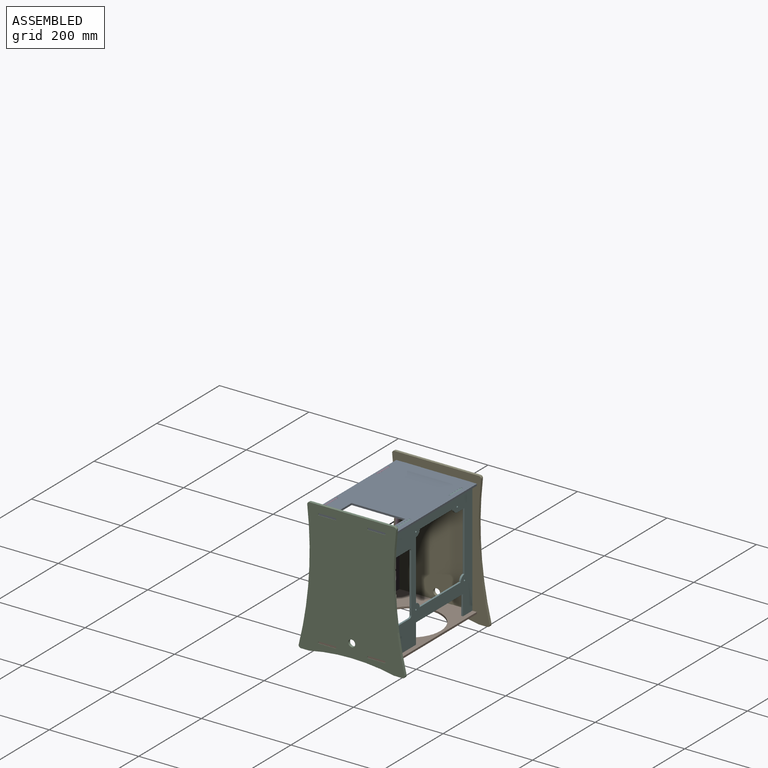
[diagram: assembled view]
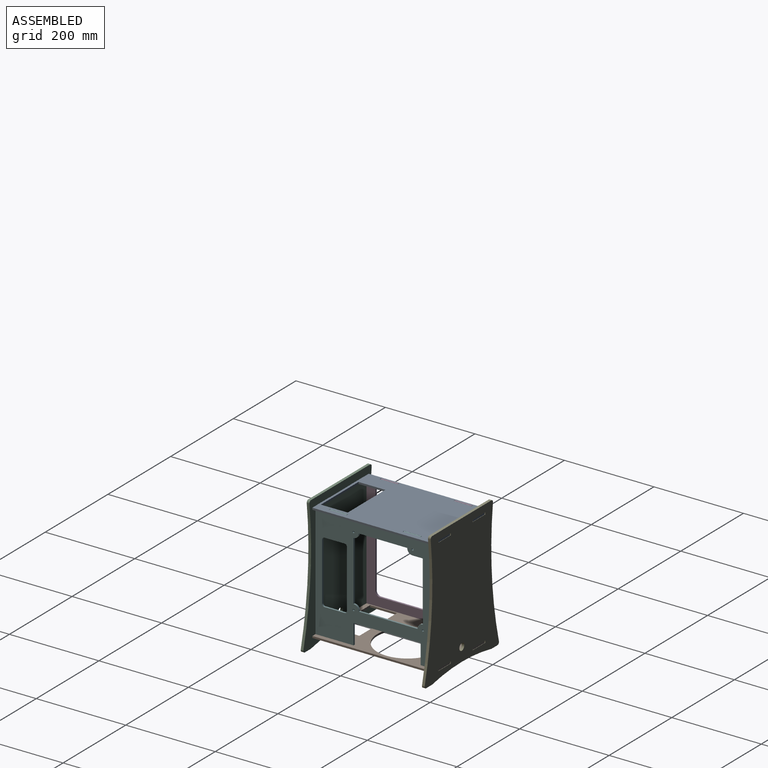
[diagram: assembled view, second angle]
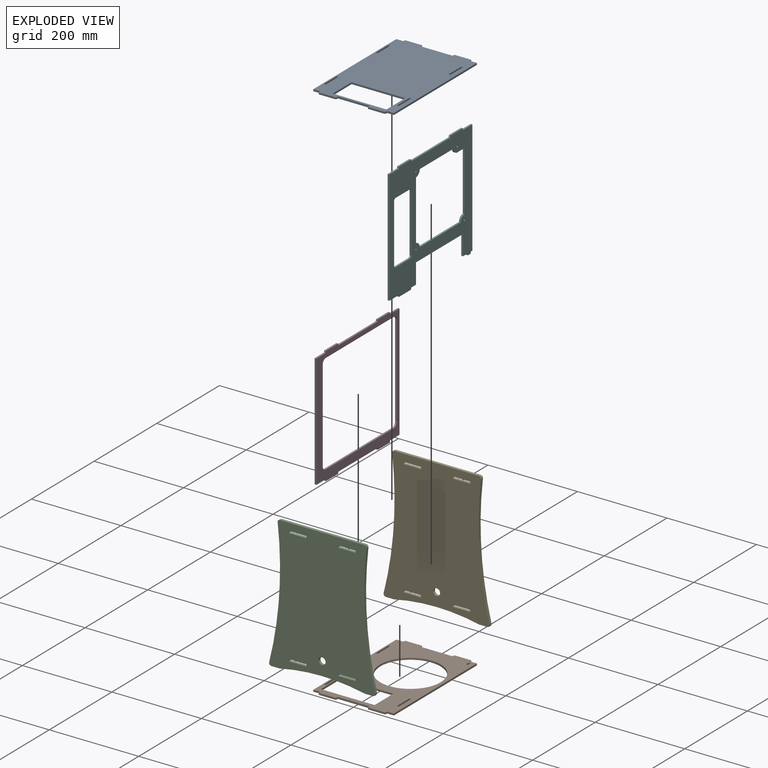
[diagram: exploded view]
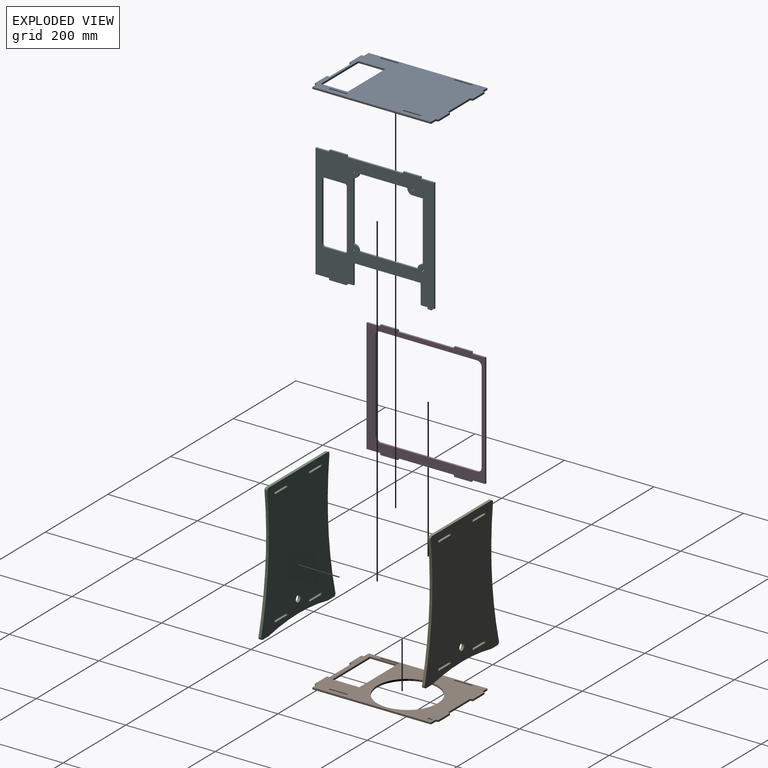
[diagram: exploded view, second angle]
ASSEMBLY  parts=6 mates=5
PART A: 42 faces, bbox 180x275.8x4 mm
  f0: plane 15x4mm, normal (0,-1,0), area 60mm2, adj f6,f8,f9,f23
  f1: plane 15x4mm, normal (0,1,0), area 60mm2, adj f6,f8,f9,f22
  f2: plane 70x4mm, normal (0,1,0), area 280mm2, adj f8,f9,f18,f21
  f3: plane 70x4mm, normal (0,-1,0), area 280mm2, adj f8,f9,f16,f24
  f4: plane 265x4mm, normal (-1,0,0), area 1060mm2, adj f5,f7,f8,f9
  f5: plane 15x4mm, normal (0,-1,0), area 60mm2, adj f4,f8,f9,f14
  f6: plane 265x4mm, normal (1,0,0), area 1060mm2, adj f0,f1,f8,f9
  f7: plane 15x4mm, normal (0,1,0), area 60mm2, adj f4,f8,f9,f17
  f8: plane 275.82x180mm, normal (0,0,1), area 40664.9mm2, adj f0,f1,f2,f3,f4,f5,f6,f7
  f9: plane 275.82x180mm, normal (0,0,-1), area 40664.9mm2, adj f0,f1,f2,f3,f4,f5,f6,f7
  f10: plane 60x4mm, normal (1,0,0), area 240mm2, adj f8,f9,f11,f12
  f11: plane 120x4mm, normal (0,-1,0), area 480mm2, adj f8,f9,f10,f13
  f12: plane 120x4mm, normal (0,1,0), area 480mm2, adj f8,f9,f10,f13
  f13: plane 60x4mm, normal (-1,0,0), area 240mm2, adj f8,f9,f11,f12
  f14: plane 5.5x4mm, normal (-0.98,-0.17,0), area 22.3mm2, adj f5,f8,f9,f15
  f15: plane 38.06x4mm, normal (0,-1,0), area 152.2mm2, adj f8,f9,f14,f16
  f16: plane 5.5x4mm, normal (0.98,-0.17,0), area 22.3mm2, adj f3,f8,f9,f15
  f17: plane 5.32x4mm, normal (-0.95,0.3,0), area 22.3mm2, adj f7,f8,f9,f19
  f18: plane 5.32x4mm, normal (0.95,0.3,0), area 22.3mm2, adj f2,f8,f9,f19
  f19: plane 36.6x4mm, normal (0,1,0), area 146.4mm2, adj f8,f9,f17,f18
  f20: plane 36.6x4mm, normal (0,1,0), area 146.4mm2, adj f8,f9,f21,f22
  f21: plane 5.32x4mm, normal (-0.95,0.3,0), area 22.3mm2, adj f2,f8,f9,f20
  f22: plane 5.32x4mm, normal (0.95,0.3,0), area 22.3mm2, adj f1,f8,f9,f20
  f23: plane 5.5x4mm, normal (0.98,-0.17,0), area 22.3mm2, adj f0,f8,f9,f25
  f24: plane 5.5x4mm, normal (-0.98,-0.17,0), area 22.3mm2, adj f3,f8,f9,f25
  f25: plane 38.06x4mm, normal (0,-1,0), area 152.2mm2, adj f8,f9,f23,f24
  f26: plane 4.2x4mm, normal (0,1,0), area 16.8mm2, adj f8,f9,f27,f28
  f27: plane 40x4mm, normal (1,0,0), area 160mm2, adj f8,f9,f26,f29
  f28: plane 40x4mm, normal (-1,0,0), area 160mm2, adj f8,f9,f26,f29
  f29: plane 4.2x4mm, normal (0,-1,0), area 16.8mm2, adj f8,f9,f27,f28
  f30: plane 4.2x4mm, normal (0,1,0), area 16.8mm2, adj f8,f9,f31,f32
  f31: plane 40x4mm, normal (1,0,0), area 160mm2, adj f8,f9,f30,f33
  f32: plane 40x4mm, normal (-1,0,0), area 160mm2, adj f8,f9,f30,f33
  f33: plane 4.2x4mm, normal (0,-1,0), area 16.8mm2, adj f8,f9,f31,f32
  f34: plane 4.2x4mm, normal (0,1,0), area 16.8mm2, adj f8,f9,f35,f36
  f35: plane 40x4mm, normal (1,0,0), area 160mm2, adj f8,f9,f34,f37
  f36: plane 40x4mm, normal (-1,0,0), area 160mm2, adj f8,f9,f34,f37
  f37: plane 4.2x4mm, normal (0,-1,0), area 16.8mm2, adj f8,f9,f35,f36
  f38: plane 4.2x4mm, normal (0,-1,0), area 16.8mm2, adj f8,f9,f39,f40
  f39: plane 40x4mm, normal (-1,0,0), area 160mm2, adj f8,f9,f38,f41
  f40: plane 40x4mm, normal (1,0,0), area 160mm2, adj f8,f9,f38,f41
  f41: plane 4.2x4mm, normal (0,1,0), area 16.8mm2, adj f8,f9,f39,f40
PART B: 43 faces, bbox 180x275.8x4 mm
  f0: plane 15x4mm, normal (0,-1,0), area 60mm2, adj f6,f8,f9,f24
  f1: plane 15x4mm, normal (0,1,0), area 60mm2, adj f6,f8,f9,f23
  f2: plane 70x4mm, normal (0,1,0), area 280mm2, adj f8,f9,f19,f22
  f3: plane 70x4mm, normal (0,-1,0), area 280mm2, adj f8,f9,f17,f25
  f4: plane 265x4mm, normal (-1,0,0), area 1060mm2, adj f5,f7,f8,f9
  f5: plane 15x4mm, normal (0,-1,0), area 60mm2, adj f4,f8,f9,f15
  f6: plane 265x4mm, normal (1,0,0), area 1060mm2, adj f0,f1,f8,f9
  f7: plane 15x4mm, normal (0,1,0), area 60mm2, adj f4,f8,f9,f18
  f8: plane 275.82x180mm, normal (0,0,1), area 26477mm2, adj f0,f1,f2,f3,f4,f5,f6,f7
  f9: plane 275.82x180mm, normal (0,0,-1), area 26477mm2, adj f0,f1,f2,f3,f4,f5,f6,f7
  f10: plane 60x4mm, normal (1,0,0), area 240mm2, adj f8,f9,f11,f12
  f11: plane 120x4mm, normal (0,-1,0), area 480mm2, adj f8,f9,f10,f13
  f12: plane 120x4mm, normal (0,1,0), area 480mm2, adj f8,f9,f10,f13
  f13: plane 60x4mm, normal (-1,0,0), area 240mm2, adj f8,f9,f11,f12
  f14: cylinder r=67.5mm len=135mm, axis (0,0,1), area 1696.5mm2, adj f8,f9
  f15: plane 5.5x4mm, normal (-0.98,-0.17,0), area 22.3mm2, adj f5,f8,f9,f16
  f16: plane 38.06x4mm, normal (0,-1,0), area 152.2mm2, adj f8,f9,f15,f17
  f17: plane 5.5x4mm, normal (0.98,-0.17,0), area 22.3mm2, adj f3,f8,f9,f16
  f18: plane 5.32x4mm, normal (-0.95,0.3,0), area 22.3mm2, adj f7,f8,f9,f20
  f19: plane 5.32x4mm, normal (0.95,0.3,0), area 22.3mm2, adj f2,f8,f9,f20
  f20: plane 36.6x4mm, normal (0,1,0), area 146.4mm2, adj f8,f9,f18,f19
  f21: plane 36.6x4mm, normal (0,1,0), area 146.4mm2, adj f8,f9,f22,f23
  f22: plane 5.32x4mm, normal (-0.95,0.3,0), area 22.3mm2, adj f2,f8,f9,f21
  f23: plane 5.32x4mm, normal (0.95,0.3,0), area 22.3mm2, adj f1,f8,f9,f21
  f24: plane 5.5x4mm, normal (0.98,-0.17,0), area 22.3mm2, adj f0,f8,f9,f26
  f25: plane 5.5x4mm, normal (-0.98,-0.17,0), area 22.3mm2, adj f3,f8,f9,f26
  f26: plane 38.06x4mm, normal (0,-1,0), area 152.2mm2, adj f8,f9,f24,f25
  f27: plane 4.2x4mm, normal (0,1,0), area 16.8mm2, adj f8,f9,f28,f29
  f28: plane 40x4mm, normal (1,0,0), area 160mm2, adj f8,f9,f27,f30
  f29: plane 40x4mm, normal (-1,0,0), area 160mm2, adj f8,f9,f27,f30
  f30: plane 4.2x4mm, normal (0,-1,0), area 16.8mm2, adj f8,f9,f28,f29
  f31: plane 4.2x4mm, normal (0,1,0), area 16.8mm2, adj f8,f9,f32,f33
  f32: plane 40x4mm, normal (1,0,0), area 160mm2, adj f8,f9,f31,f34
  f33: plane 40x4mm, normal (-1,0,0), area 160mm2, adj f8,f9,f31,f34
  f34: plane 4.2x4mm, normal (0,-1,0), area 16.8mm2, adj f8,f9,f32,f33
  f35: plane 4.2x4mm, normal (0,1,0), area 16.8mm2, adj f8,f9,f36,f37
  f36: plane 40x4mm, normal (1,0,0), area 160mm2, adj f8,f9,f35,f38
  f37: plane 40x4mm, normal (-1,0,0), area 160mm2, adj f8,f9,f35,f38
  f38: plane 4.2x4mm, normal (0,-1,0), area 16.8mm2, adj f8,f9,f36,f37
  f39: plane 4.2x4mm, normal (0,-1,0), area 16.8mm2, adj f8,f9,f40,f41
  f40: plane 10x4mm, normal (-1,0,0), area 40mm2, adj f8,f9,f39,f42
  f41: plane 10x4mm, normal (1,0,0), area 40mm2, adj f8,f9,f39,f42
  f42: plane 4.2x4mm, normal (0,1,0), area 16.8mm2, adj f8,f9,f40,f41
PART C: 29 faces, bbox 237.1x6x300 mm
  f0: cylinder r=800mm len=288.2mm, axis (0,1,0), area 1742.5mm2, adj f7,f8,f9,f12
  f1: plane 18.55x6mm, normal (0,0,-1), area 111.3mm2, adj f2,f7,f8,f9
  f2: cylinder r=456.25mm len=190mm, axis (0,1,0), area 1148.4mm2, adj f1,f3,f7,f8
  f3: plane 18.55x6mm, normal (0,0,-1), area 111.3mm2, adj f2,f7,f8,f10
  f4: cylinder r=800mm len=288.2mm, axis (0,1,0), area 1742.5mm2, adj f7,f8,f10,f11
  f5: plane 188.73x6mm, normal (0,0,1), area 1132.4mm2, adj f7,f8,f11,f12
  f6: cylinder r=7.75mm len=15.5mm, axis (0,1,0), area 292.2mm2, adj f7,f8
  f7: plane 300x237.1mm, normal (0,-1,0), area 58113.2mm2, adj f0,f1,f2,f3,f4,f5,f6,f9
  f8: plane 300x237.1mm, normal (0,1,0), area 58113.2mm2, adj f0,f1,f2,f3,f4,f5,f6,f9
  f9: cylinder r=5mm len=6.23mm, axis (0,1,0), area 54.6mm2, adj f0,f1,f7,f8
  f10: cylinder r=5mm len=6.23mm, axis (0,1,0), area 54.6mm2, adj f3,f4,f7,f8
  f11: cylinder r=5mm len=6mm, axis (0,1,0), area 50.6mm2, adj f4,f5,f7,f8
  f12: cylinder r=5mm len=6mm, axis (0,1,0), area 50.6mm2, adj f0,f5,f7,f8
  f13: plane 6x4.2mm, normal (1,0,0), area 25.2mm2, adj f7,f8,f14,f15
  f14: plane 40x6mm, normal (0,0,-1), area 240mm2, adj f7,f8,f13,f16
  f15: plane 40x6mm, normal (0,0,1), area 240mm2, adj f7,f8,f13,f16
  f16: plane 6x4.2mm, normal (-1,0,0), area 25.2mm2, adj f7,f8,f14,f15
  f17: plane 40x6mm, normal (0,0,-1), area 240mm2, adj f7,f8,f18,f19
  f18: plane 6x4.2mm, normal (-1,0,0), area 25.2mm2, adj f7,f8,f17,f20
  f19: plane 6x4.2mm, normal (1,0,0), area 25.2mm2, adj f7,f8,f17,f20
  f20: plane 40x6mm, normal (0,0,1), area 240mm2, adj f7,f8,f18,f19
  f21: plane 6x4.2mm, normal (1,0,0), area 25.2mm2, adj f7,f8,f22,f23
  f22: plane 40x6mm, normal (0,0,-1), area 240mm2, adj f7,f8,f21,f24
  f23: plane 40x6mm, normal (0,0,1), area 240mm2, adj f7,f8,f21,f24
  f24: plane 6x4.2mm, normal (-1,0,0), area 25.2mm2, adj f7,f8,f22,f23
  f25: plane 6x4.2mm, normal (1,0,0), area 25.2mm2, adj f7,f8,f26,f27
  f26: plane 40x6mm, normal (0,0,-1), area 240mm2, adj f7,f8,f25,f28
  f27: plane 40x6mm, normal (0,0,1), area 240mm2, adj f7,f8,f25,f28
  f28: plane 6x4.2mm, normal (-1,0,0), area 25.2mm2, adj f7,f8,f26,f27
PART D: 30 faces, bbox 4x265x263 mm
  f0: plane 265x263mm, normal (1,0,0), area 14964.6mm2, adj f2,f3,f4,f5,f6,f7,f8,f9
  f1: plane 265x263mm, normal (-1,0,0), area 14964.6mm2, adj f2,f3,f4,f5,f6,f7,f8,f9
  f2: plane 125x4mm, normal (0,0,-1), area 500mm2, adj f0,f1,f18,f20
  f3: plane 30x4mm, normal (0,0,-1), area 120mm2, adj f0,f1,f9,f16
  f4: plane 125x4mm, normal (0,0,1), area 500mm2, adj f0,f1,f10,f13
  f5: plane 30x4mm, normal (0,0,1), area 120mm2, adj f0,f1,f9,f12
  f6: plane 30x4mm, normal (0,0,-1), area 120mm2, adj f0,f1,f7,f19
  f7: plane 255x4mm, normal (0,1,0), area 1020mm2, adj f0,f1,f6,f8
  f8: plane 30x4mm, normal (0,0,1), area 120mm2, adj f0,f1,f7,f14
  f9: plane 255x4mm, normal (0,-1,0), area 1020mm2, adj f0,f1,f3,f5
  f10: plane 4x4mm, normal (0,0.98,0.17), area 16.2mm2, adj f0,f1,f4,f11
  f11: plane 38.59x4mm, normal (0,0,1), area 154.4mm2, adj f0,f1,f10,f12
  f12: plane 4x4mm, normal (0,-0.98,0.17), area 16.2mm2, adj f0,f1,f5,f11
  f13: plane 4x4mm, normal (0,-0.98,0.17), area 16.2mm2, adj f0,f1,f4,f15
  f14: plane 4x4mm, normal (0,0.98,0.17), area 16.2mm2, adj f0,f1,f8,f15
  f15: plane 38.59x4mm, normal (0,0,1), area 154.4mm2, adj f0,f1,f13,f14
  f16: plane 4x4mm, normal (0,-0.98,-0.17), area 16.2mm2, adj f0,f1,f3,f17
  f17: plane 38.59x4mm, normal (0,0,-1), area 154.4mm2, adj f0,f1,f16,f18
  f18: plane 4x4mm, normal (0,0.98,-0.17), area 16.2mm2, adj f0,f1,f2,f17
  f19: plane 4x4mm, normal (0,0.98,-0.17), area 16.2mm2, adj f0,f1,f6,f21
  f20: plane 4x4mm, normal (0,-0.98,-0.17), area 16.2mm2, adj f0,f1,f2,f21
  f21: plane 38.59x4mm, normal (0,0,-1), area 154.4mm2, adj f0,f1,f19,f20
  f22: plane 205x4mm, normal (0,-1,0), area 820mm2, adj f0,f1,f23,f29
  f23: cylinder r=10mm len=10mm, axis (1,0,0), area 62.8mm2, adj f0,f1,f22,f24
  f24: plane 217x4mm, normal (0,0,-1), area 868mm2, adj f0,f1,f23,f25
  f25: cylinder r=10mm len=10mm, axis (1,0,0), area 62.8mm2, adj f0,f1,f24,f26
  f26: plane 205x4mm, normal (0,1,0), area 820mm2, adj f0,f1,f25,f27
  f27: cylinder r=10mm len=10mm, axis (1,0,0), area 62.8mm2, adj f0,f1,f26,f28
  f28: plane 217x4mm, normal (0,0,1), area 868mm2, adj f0,f1,f27,f29
  f29: cylinder r=10mm len=10mm, axis (1,0,0), area 62.8mm2, adj f0,f1,f22,f28
PART E: same geometry as C
PART F: 47 faces, bbox 4x265x263 mm
  f0: plane 265x263mm, normal (1,0,0), area 29926.5mm2, adj f2,f3,f4,f5,f6,f7,f8,f9
  f1: plane 265x263mm, normal (-1,0,0), area 29926.5mm2, adj f2,f3,f4,f5,f6,f7,f8,f9
  f2: plane 15x4mm, normal (0,0,-1), area 60mm2, adj f0,f1,f21,f29
  f3: plane 15x4mm, normal (0,0,-1), area 60mm2, adj f0,f1,f19,f27
  f4: plane 30x4mm, normal (0,0,-1), area 120mm2, adj f0,f1,f10,f17
  f5: plane 125x4mm, normal (0,0,1), area 500mm2, adj f0,f1,f11,f14
  f6: plane 30x4mm, normal (0,0,1), area 120mm2, adj f0,f1,f10,f13
  f7: plane 5x4mm, normal (0,0,-1), area 20mm2, adj f0,f1,f8,f20
  f8: plane 255x4mm, normal (0,1,0), area 1020mm2, adj f0,f1,f7,f9
  f9: plane 30x4mm, normal (0,0,1), area 120mm2, adj f0,f1,f8,f15
  f10: plane 255x4mm, normal (0,-1,0), area 1020mm2, adj f0,f1,f4,f6
  f11: plane 4x4mm, normal (0,0.98,0.17), area 16.2mm2, adj f0,f1,f5,f12
  f12: plane 38.59x4mm, normal (0,0,1), area 154.4mm2, adj f0,f1,f11,f13
  f13: plane 4x4mm, normal (0,-0.98,0.17), area 16.2mm2, adj f0,f1,f6,f12
  f14: plane 4x4mm, normal (0,-0.98,0.17), area 16.2mm2, adj f0,f1,f5,f16
  f15: plane 4x4mm, normal (0,0.98,0.17), area 16.2mm2, adj f0,f1,f9,f16
  f16: plane 38.59x4mm, normal (0,0,1), area 154.4mm2, adj f0,f1,f14,f15
  f17: plane 4x4mm, normal (0,-0.98,-0.17), area 16.2mm2, adj f0,f1,f4,f18
  f18: plane 38.59x4mm, normal (0,0,-1), area 154.4mm2, adj f0,f1,f17,f19
  f19: plane 4x4mm, normal (0,0.98,-0.17), area 16.2mm2, adj f0,f1,f3,f18
  f20: plane 4x4mm, normal (0,0.98,-0.17), area 16.2mm2, adj f0,f1,f7,f22
  f21: plane 4x4mm, normal (0,-0.98,-0.17), area 16.2mm2, adj f0,f1,f2,f22
  f22: plane 8.59x4mm, normal (0,0,-1), area 34.4mm2, adj f0,f1,f20,f21
  f23: cylinder r=2.1mm len=4.2mm, axis (-1,0,0), area 52.8mm2, adj f0,f1
  f24: cylinder r=2.1mm len=4.2mm, axis (-1,0,0), area 52.8mm2, adj f0,f1
  f25: cylinder r=2.1mm len=4.2mm, axis (-1,0,0), area 52.8mm2, adj f0,f1
  f26: cylinder r=2.1mm len=4.2mm, axis (-1,0,0), area 52.8mm2, adj f0,f1
  f27: plane 45x4mm, normal (0,1,0), area 180mm2, adj f0,f1,f3,f28
  f28: plane 150x4mm, normal (0,0,-1), area 600mm2, adj f0,f1,f27,f29
  f29: plane 45x4mm, normal (0,-1,0), area 180mm2, adj f0,f1,f2,f28
  f30: cylinder r=5mm len=5mm, axis (-1,0,0), area 31.4mm2, adj f0,f1,f31,f35
  f31: plane 130x4mm, normal (0,-1,0), area 520mm2, adj f0,f1,f30,f32
  f32: cylinder r=5mm len=5mm, axis (-1,0,0), area 31.4mm2, adj f0,f1,f31,f33
  f33: plane 45x4mm, normal (0,0,1), area 180mm2, adj f0,f1,f32,f34
  f34: cylinder r=5mm len=5mm, axis (-1,0,0), area 31.4mm2, adj f0,f1,f33,f36
  f35: plane 45x4mm, normal (0,0,-1), area 180mm2, adj f0,f1,f30,f37
  f36: plane 130x4mm, normal (0,1,0), area 520mm2, adj f0,f1,f34,f37
  f37: cylinder r=5mm len=5mm, axis (-1,0,0), area 31.4mm2, adj f0,f1,f35,f36
  f38: cylinder r=12mm len=12mm, axis (-1,0,0), area 75.4mm2, adj f0,f1,f39,f44
  f39: plane 108.08x4mm, normal (0,0,-1), area 432.3mm2, adj f0,f1,f38,f40
  f40: cylinder r=12mm len=12mm, axis (-1,0,0), area 75.4mm2, adj f0,f1,f39,f41
  f41: plane 22.86x4mm, normal (0,0,-1), area 91.4mm2, adj f0,f1,f40,f42
  f42: plane 133.48x4mm, normal (0,-1,0), area 533.9mm2, adj f0,f1,f41,f43
  f43: cylinder r=12mm len=12mm, axis (-1,0,0), area 75.4mm2, adj f0,f1,f42,f45
  f44: plane 133.48x4mm, normal (0,1,0), area 533.9mm2, adj f0,f1,f38,f46
  f45: plane 130.94x4mm, normal (0,0,1), area 523.8mm2, adj f0,f1,f43,f46
  f46: cylinder r=12mm len=12mm, axis (-1,0,0), area 75.4mm2, adj f0,f1,f44,f45
PLACE A t=(0,0,279)mm
PLACE B t=(0,0,20)mm
PLACE C at identity fixed
PLACE D t=(-87,265,24)mm
PLACE E t=(0,271,0)mm
PLACE F t=(76,265,24)mm
MATE fastened B.f8 <-> F.f4  axis (0,0,1) through (80,30,24)mm
MATE fastened D.f3 <-> B.f8  axis (0,0,-1) through (-87,30,24)mm
MATE fastened A.f9 <-> F.f6  axis (0,0,-1) through (80,30,279)mm
MATE fastened B.f0 <-> C.f8  axis (0,-1,0) through (75,0,20)mm
MATE fastened E.f7 <-> B.f1  axis (0,-1,0) through (75,265,20)mm
